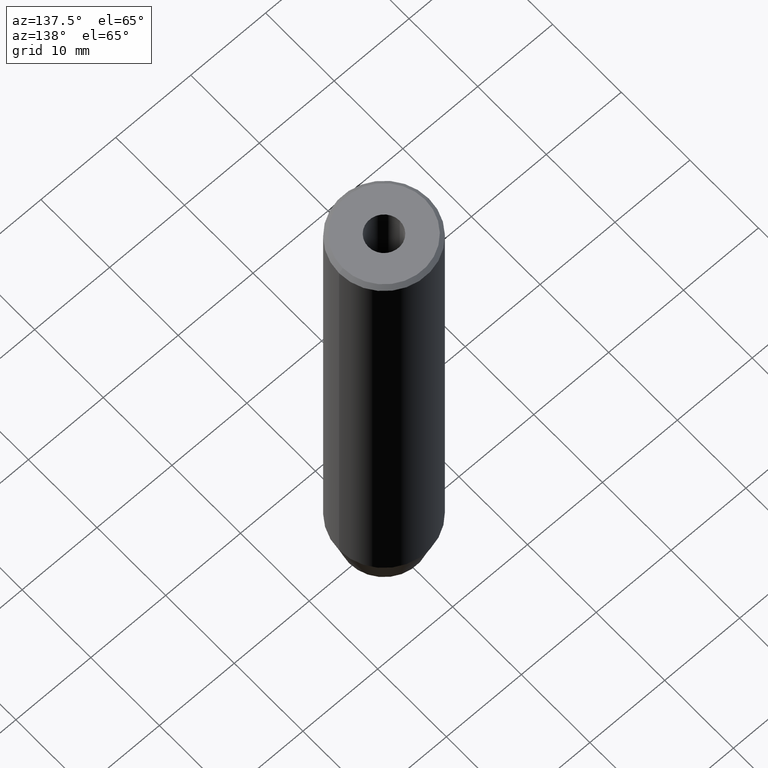
[diagram: clean part render]
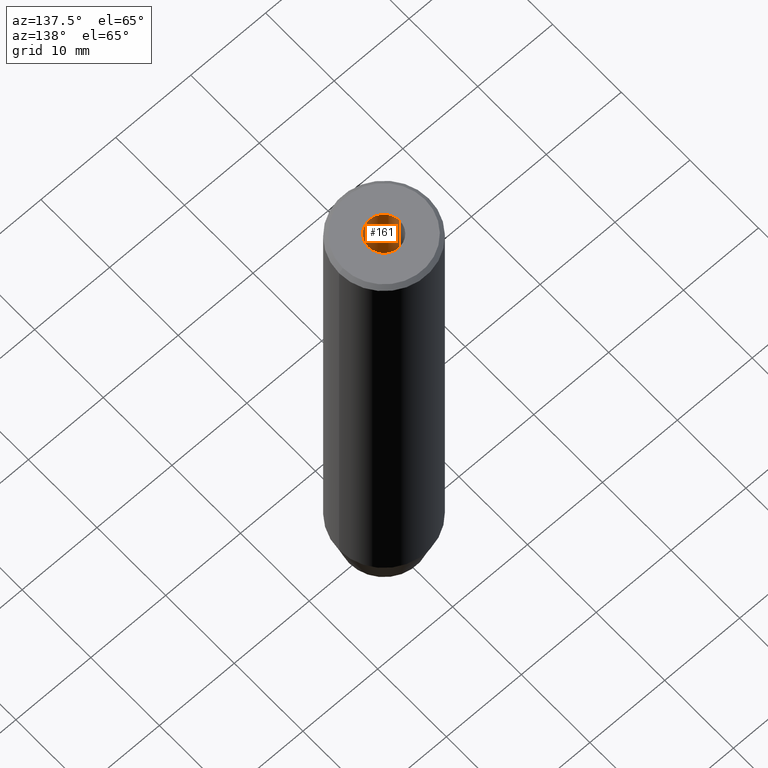
[diagram: same view with one face highlighted and labeled with its STEP entity id]
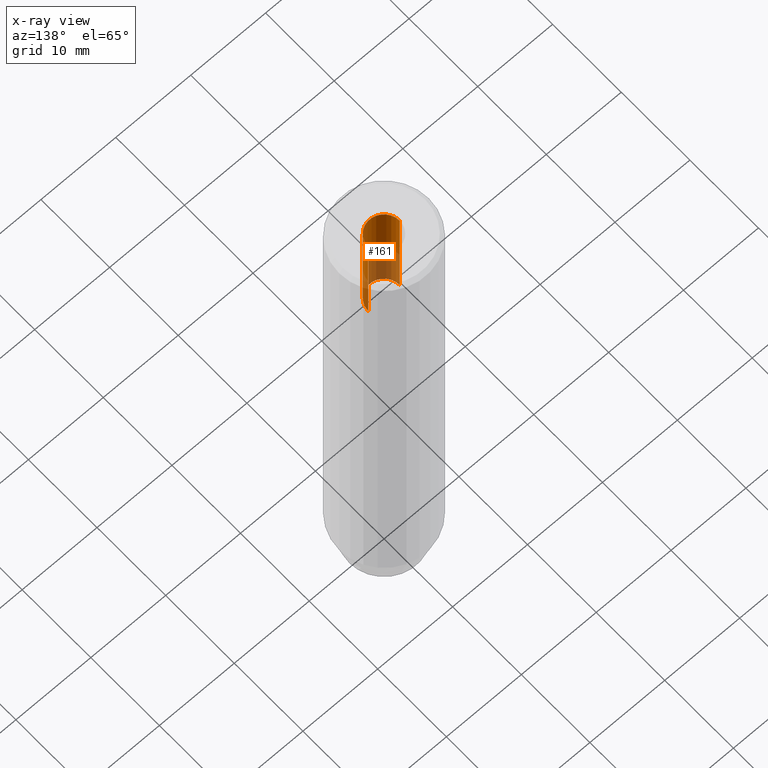
[diagram: x-ray of the same camera — body ghosted, the highlighted face saturated]
A machine part, auxiliary view. The second image highlights one B-rep face of the part: STEP entity #161.
The next image is the same camera in x-ray: the body ghosted, the highlighted face saturated — about 43% of this face is hidden behind the body in this view.
In plain terms, the highlighted cylindrical surface (edge-blend (fillet) strip) has radius 2.1 mm, axis along (-0, -0, 1).
Its self-contained STEP definition (entity closure, byte-faithful):
#4 = LINE ( 'NONE', #89, #274 ) ;
#18 = CARTESIAN_POINT ( 'NONE',  ( -2.099999999999998757, 2.571758278209439985E-16, -1.990051048614449116E-16 ) ) ;
#41 = DIRECTION ( 'NONE',  ( -0.000000000000000000, -0.000000000000000000, 1.000000000000000000 ) ) ;
#42 = ORIENTED_EDGE ( 'NONE', *, *, #153, .F. ) ;
#79 = CARTESIAN_POINT ( 'NONE',  ( 0.000000000000000000, 0.000000000000000000, -1.990051048614449116E-16 ) ) ;
#87 = FACE_OUTER_BOUND ( 'NONE', #94, .T. ) ;
#89 = CARTESIAN_POINT ( 'NONE',  ( -2.099999999999997868, 2.571758278209438999E-16, 0.000000000000000000 ) ) ;
#94 = EDGE_LOOP ( 'NONE', ( #42, #393, #227, #482 ) ) ;
#113 = CARTESIAN_POINT ( 'NONE',  ( 2.099999999999996980, 0.000000000000000000, -15.00000000000000000 ) ) ;
#120 = AXIS2_PLACEMENT_3D ( 'NONE', #79, #122, #187 ) ;
#122 = DIRECTION ( 'NONE',  ( -0.000000000000000000, -0.000000000000000000, 1.000000000000000000 ) ) ;
#128 = CARTESIAN_POINT ( 'NONE',  ( 0.000000000000000000, 0.000000000000000000, -15.00000000000000000 ) ) ;
#135 = EDGE_CURVE ( 'NONE', #523, #354, #359, .T. ) ;
#153 = EDGE_CURVE ( 'NONE', #267, #523, #465, .T. ) ;
#161 = ADVANCED_FACE ( 'NONE', ( #87 ), #449, .F. ) ;
#172 = CARTESIAN_POINT ( 'NONE',  ( 2.099999999999997868, 0.000000000000000000, 0.000000000000000000 ) ) ;
#187 = DIRECTION ( 'NONE',  ( 1.000000000000000000, 0.000000000000000000, 0.000000000000000000 ) ) ;
#227 = ORIENTED_EDGE ( 'NONE', *, *, #264, .T. ) ;
#239 = CARTESIAN_POINT ( 'NONE',  ( 2.099999999999998757, 0.000000000000000000, -1.990051048614449116E-16 ) ) ;
#260 = DIRECTION ( 'NONE',  ( -0.000000000000000000, -0.000000000000000000, 1.000000000000000000 ) ) ;
#264 = EDGE_CURVE ( 'NONE', #506, #354, #322, .T. ) ;
#267 = VERTEX_POINT ( 'NONE', #372 ) ;
#269 = DIRECTION ( 'NONE',  ( 1.000000000000000000, 0.000000000000000000, 0.000000000000000000 ) ) ;
#274 = VECTOR ( 'NONE', #420, 1000.000000000000000 ) ;
#284 = EDGE_CURVE ( 'NONE', #267, #506, #4, .T. ) ;
#322 = CIRCLE ( 'NONE', #120, 2.099999999999998757 ) ;
#350 = AXIS2_PLACEMENT_3D ( 'NONE', #357, #41, #269 ) ;
#354 = VERTEX_POINT ( 'NONE', #239 ) ;
#357 = CARTESIAN_POINT ( 'NONE',  ( 0.000000000000000000, 0.000000000000000000, 0.000000000000000000 ) ) ;
#359 = LINE ( 'NONE', #172, #457 ) ;
#365 = DIRECTION ( 'NONE',  ( -0.000000000000000000, -0.000000000000000000, 1.000000000000000000 ) ) ;
#372 = CARTESIAN_POINT ( 'NONE',  ( -2.099999999999996980, 2.571758278209438013E-16, -15.00000000000000000 ) ) ;
#393 = ORIENTED_EDGE ( 'NONE', *, *, #284, .T. ) ;
#420 = DIRECTION ( 'NONE',  ( -0.000000000000000000, -0.000000000000000000, 1.000000000000000000 ) ) ;
#449 = CYLINDRICAL_SURFACE ( 'NONE', #350, 2.099999999999997868 ) ;
#456 = AXIS2_PLACEMENT_3D ( 'NONE', #128, #260, #492 ) ;
#457 = VECTOR ( 'NONE', #365, 1000.000000000000000 ) ;
#465 = CIRCLE ( 'NONE', #456, 2.099999999999996980 ) ;
#482 = ORIENTED_EDGE ( 'NONE', *, *, #135, .F. ) ;
#492 = DIRECTION ( 'NONE',  ( 1.000000000000000000, 0.000000000000000000, 0.000000000000000000 ) ) ;
#506 = VERTEX_POINT ( 'NONE', #18 ) ;
#523 = VERTEX_POINT ( 'NONE', #113 ) ;